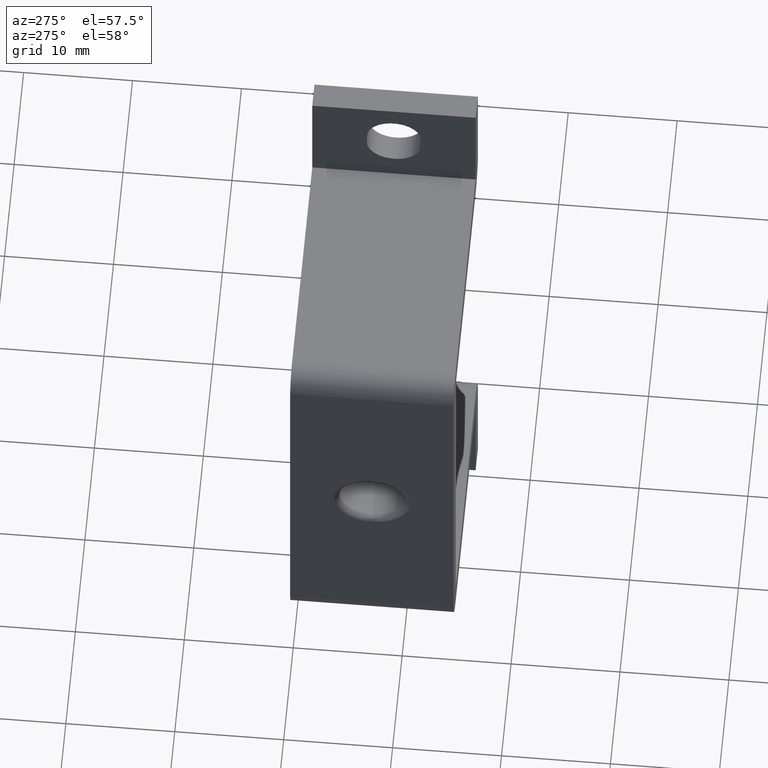
[diagram: clean part render]
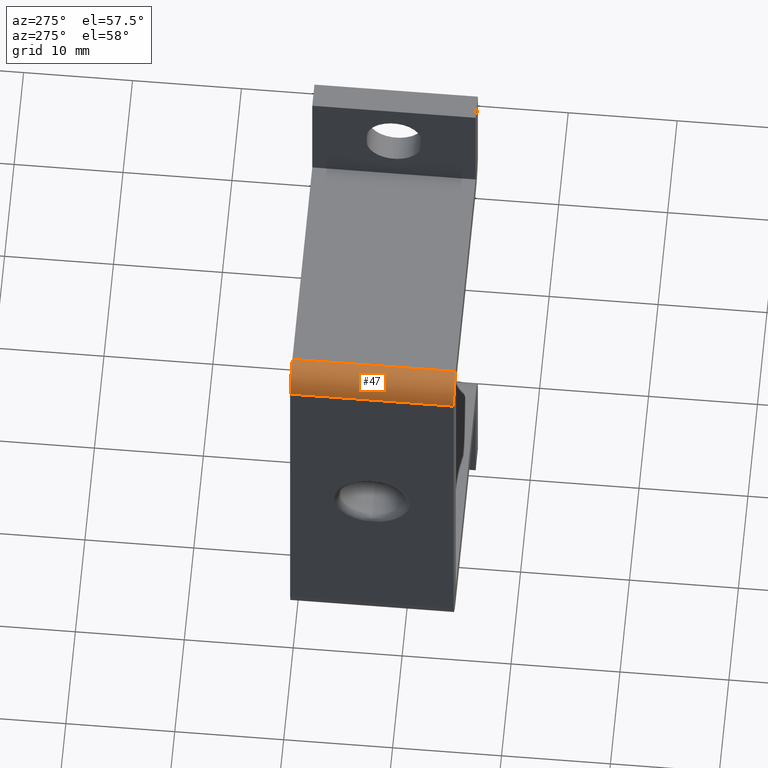
[diagram: same view with one face highlighted and labeled with its STEP entity id]
A machine part, auxiliary view. The second image highlights one B-rep face of the part: STEP entity #47.
In plain terms, the highlighted cylindrical surface (edge-blend (fillet) strip) has radius 2.3 mm, axis along (0, -1, 0).
Its self-contained STEP definition (entity closure, byte-faithful):
#47=ADVANCED_FACE('',(#147),#146,.T.);
#146=CYLINDRICAL_SURFACE('',#451,2.30000000000E+00);
#147=FACE_OUTER_BOUND('',#452,.T.);
#448=CARTESIAN_POINT('',(-2.09000000000E+01,-7.50000000000E+00,4.72000000000E+01));
#449=DIRECTION('',(0.00000000000E+00,-1.00000000000E+00,0.00000000000E+00));
#450=DIRECTION('',(-0.00000000000E+00,0.00000000000E+00,1.00000000000E+00));
#451=AXIS2_PLACEMENT_3D('',#448,#449,#450);
#452=EDGE_LOOP('',(#658,#659,#660,#661));
#658=ORIENTED_EDGE('',*,*,#829,.T.);
#659=ORIENTED_EDGE('',*,*,#826,.F.);
#660=ORIENTED_EDGE('',*,*,#830,.F.);
#661=ORIENTED_EDGE('',*,*,#809,.T.);
#809=EDGE_CURVE('',#952,#945,#953,.T.);
#826=EDGE_CURVE('',#1061,#1054,#1068,.T.);
#829=EDGE_CURVE('',#945,#1054,#1087,.T.);
#830=EDGE_CURVE('',#952,#1061,#1093,.T.);
#945=VERTEX_POINT('',#1513);
#952=VERTEX_POINT('',#1517);
#953=LINE('',#1518,#1519);
#1054=VERTEX_POINT('',#1577);
#1061=VERTEX_POINT('',#1581);
#1068=LINE('',#1585,#1586);
#1087=CIRCLE('',#1598,2.30000000000E+00);
#1093=CIRCLE('',#1602,2.30000000000E+00);
#1513=CARTESIAN_POINT('',(-2.32000000000E+01,-1.50000000000E+01,4.72000000000E+01));
#1517=CARTESIAN_POINT('',(-2.32000000000E+01,0.00000000000E+00,4.72000000000E+01));
#1518=CARTESIAN_POINT('',(-2.32000000000E+01,0.00000000000E+00,4.72000000000E+01));
#1519=VECTOR('',#1520,1.50000000000E+01);
#1520=DIRECTION('',(0.00000000000E+00,-1.00000000000E+00,0.00000000000E+00));
#1577=CARTESIAN_POINT('',(-2.09000000000E+01,-1.50000000000E+01,4.95000000000E+01));
#1581=CARTESIAN_POINT('',(-2.09000000000E+01,0.00000000000E+00,4.95000000000E+01));
#1585=CARTESIAN_POINT('',(-2.09000000000E+01,0.00000000000E+00,4.95000000000E+01));
#1586=VECTOR('',#1587,1.50000000000E+01);
#1587=DIRECTION('',(0.00000000000E+00,-1.00000000000E+00,0.00000000000E+00));
#1595=CARTESIAN_POINT('',(-2.09000000000E+01,-1.50000000000E+01,4.72000000000E+01));
#1596=DIRECTION('',(0.00000000000E+00,1.00000000000E+00,0.00000000000E+00));
#1597=DIRECTION('',(1.00000000000E+00,-0.00000000000E+00,-0.00000000000E+00));
#1598=AXIS2_PLACEMENT_3D('',#1595,#1596,#1597);
#1599=CARTESIAN_POINT('',(-2.09000000000E+01,0.00000000000E+00,4.72000000000E+01));
#1600=DIRECTION('',(0.00000000000E+00,1.00000000000E+00,0.00000000000E+00));
#1601=DIRECTION('',(1.00000000000E+00,-0.00000000000E+00,-0.00000000000E+00));
#1602=AXIS2_PLACEMENT_3D('',#1599,#1600,#1601);